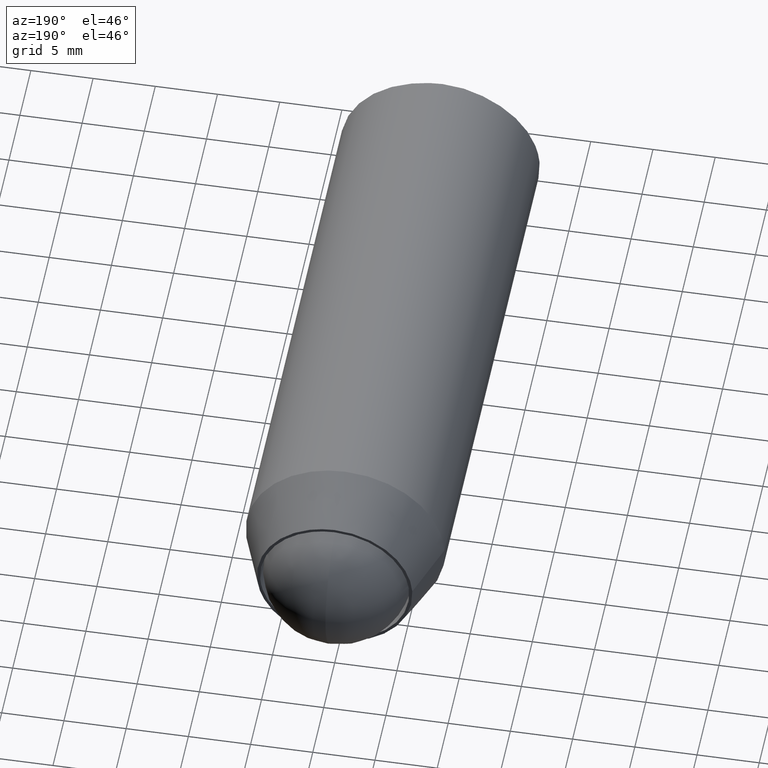
[diagram: clean part render]
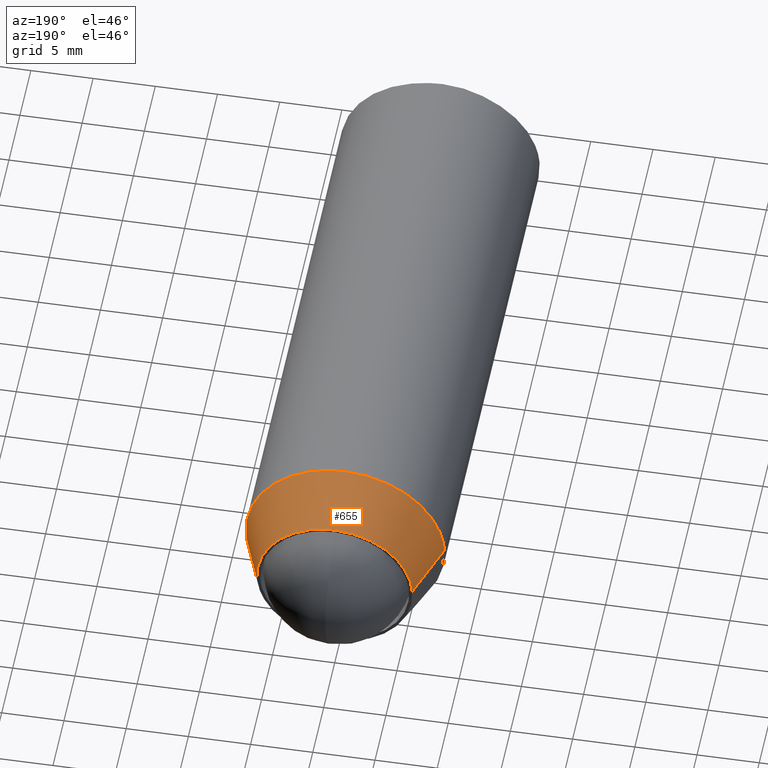
[diagram: same view with one face highlighted and labeled with its STEP entity id]
A machine part, auxiliary view. The second image highlights one B-rep face of the part: STEP entity #655.
In plain terms, the highlighted face is a freeform B-spline surface patch.
Its self-contained STEP definition (entity closure, byte-faithful):
#295=CARTESIAN_POINT('',(7.944076210907147,-4.808086000008145,-0.944273877297554));
#296=VERTEX_POINT('',#295);
#310=CARTESIAN_POINT('',(0.0,-4.808085999999999,7.999999999999998));
#311=VERTEX_POINT('',#310);
#312=CARTESIAN_POINT('',(7.944076210907147,-4.808086000008145,-0.944273877297554));
#313=CARTESIAN_POINT('',(8.0,-4.808086000000000,-0.473792957258873));
#314=CARTESIAN_POINT('',(8.0,-4.808085999999999,-1.291960E-015));
#315=CARTESIAN_POINT('',(8.0,-4.808086000000000,7.999999999999999));
#316=CARTESIAN_POINT('',(0.0,-4.808085999999999,7.999999999999998));
#324=(BOUNDED_CURVE()B_SPLINE_CURVE(2,(#312,#313,#314,#315,#316),.UNSPECIFIED.,.F.,.U.)B_SPLINE_CURVE_WITH_KNOTS((3,2,3),(0.229562473513809,0.250000000000000,0.500000000000000),.UNSPECIFIED.)CURVE()GEOMETRIC_REPRESENTATION_ITEM()RATIONAL_B_SPLINE_CURVE((0.956026754184288,0.976055948331497,1.0,0.707106781186548,1.0))REPRESENTATION_ITEM(''));
#325=EDGE_CURVE('',#296,#311,#324,.T.);
#327=CARTESIAN_POINT('',(-7.985078387375163,-4.808086000010075,0.488388316320178));
#328=VERTEX_POINT('',#327);
#329=CARTESIAN_POINT('',(0.0,-4.808085999999999,7.999999999999998));
#330=CARTESIAN_POINT('',(-7.525648535141883,-4.808085999999999,7.999999999999999));
#331=CARTESIAN_POINT('',(-7.985078387375163,-4.808086000010075,0.488388316320178));
#339=(BOUNDED_CURVE()B_SPLINE_CURVE(2,(#329,#330,#331),.UNSPECIFIED.,.F.,.U.)B_SPLINE_CURVE_WITH_KNOTS((3,3),(0.500000000000000,0.739332962239596),.UNSPECIFIED.)CURVE()GEOMETRIC_REPRESENTATION_ITEM()RATIONAL_B_SPLINE_CURVE((1.0,0.719603993285945,0.976072041668117))REPRESENTATION_ITEM(''));
#340=EDGE_CURVE('',#311,#328,#339,.T.);
#585=CARTESIAN_POINT('',(6.162865372994504,0.120202150000000,-0.732549968838508));
#586=CARTESIAN_POINT('',(6.183830638377908,0.120202150000000,-0.556171409609450));
#587=CARTESIAN_POINT('',(6.194674092705709,0.120202150000000,-0.378882498488207));
#588=CARTESIAN_POINT('',(6.573556591193915,0.120202150000000,5.815791594217502));
#589=CARTESIAN_POINT('',(0.378882498488206,0.120202150000000,6.194674092705708));
#590=CARTESIAN_POINT('',(-5.815791594217503,0.120202150000000,6.573556591193914));
#591=CARTESIAN_POINT('',(-6.194674092705709,0.120202150000000,0.378882498488205));
#592=CARTESIAN_POINT('',(7.988606481857201,-4.931293203750001,-0.949566974964458));
#593=CARTESIAN_POINT('',(8.015782680719118,-4.931293203750000,-0.720936489591182));
#594=CARTESIAN_POINT('',(8.029838494741664,-4.931293203750000,-0.491125961723623));
#595=CARTESIAN_POINT('',(8.520964456465288,-4.931293203750001,7.538712533018041));
#596=CARTESIAN_POINT('',(0.491125961723622,-4.931293203750000,8.029838494741663));
#597=CARTESIAN_POINT('',(-7.538712533018043,-4.931293203750001,8.520964456465284));
#598=CARTESIAN_POINT('',(-8.029838494741664,-4.931293203750000,0.491125961723621));
#606=(BOUNDED_SURFACE()B_SPLINE_SURFACE(2,1,((#585,#592),(#586,#593),(#587,#594),(#588,#595),(#589,#596),(#590,#597),(#591,#598)),.UNSPECIFIED.,.F.,.F.,.U.)B_SPLINE_SURFACE_WITH_KNOTS((3,2,2,3),(2,2),(0.0,0.533165342147589,13.862298895837300,27.191432449527010),(0.0,5.375689005745860),.UNSPECIFIED.)GEOMETRIC_REPRESENTATION_ITEM()RATIONAL_B_SPLINE_SURFACE(((0.977505800795127,0.977505800795127),(0.988284271247462,0.988284271247462),(1.0,1.0),(0.707106781186548,0.707106781186548),(1.0,1.0),(0.707106781186548,0.707106781186548),(1.0,1.0)))REPRESENTATION_ITEM('')SURFACE());
#607=CARTESIAN_POINT('',(6.206309539770752,-8.047153E-012,-0.737713966647744));
#608=VERTEX_POINT('',#607);
#609=CARTESIAN_POINT('',(0.0,0.0,6.249999999999999));
#610=VERTEX_POINT('',#609);
#611=CARTESIAN_POINT('',(6.206309539770752,-8.047153E-012,-0.737713966647744));
#612=CARTESIAN_POINT('',(6.250000000000001,0.0,-0.370150747867547));
#613=CARTESIAN_POINT('',(6.250000000000000,0.0,-1.291960E-015));
#614=CARTESIAN_POINT('',(6.249999999999999,0.0,6.249999999999999));
#615=CARTESIAN_POINT('',(0.0,0.0,6.249999999999999));
#623=(BOUNDED_CURVE()B_SPLINE_CURVE(2,(#611,#612,#613,#614,#615),.UNSPECIFIED.,.F.,.U.)B_SPLINE_CURVE_WITH_KNOTS((3,2,3),(0.229562473513321,0.250000000000000,0.500000000000000),.UNSPECIFIED.)CURVE()GEOMETRIC_REPRESENTATION_ITEM()RATIONAL_B_SPLINE_CURVE((0.956026754183332,0.976055948330926,1.0,0.707106781186547,1.0))REPRESENTATION_ITEM(''));
#624=EDGE_CURVE('',#608,#610,#623,.T.);
#625=ORIENTED_EDGE('',*,*,#624,.T.);
#626=CARTESIAN_POINT('',(-6.238340875282396,0.000005546944769,0.381546703838215));
#627=VERTEX_POINT('',#626);
#628=CARTESIAN_POINT('',(0.0,0.0,6.249999999999999));
#629=CARTESIAN_POINT('',(-5.879418090540685,0.000002773472384,6.249999938374815));
#630=CARTESIAN_POINT('',(-6.238340875282396,0.000005546944769,0.381546703838215));
#638=(BOUNDED_CURVE()B_SPLINE_CURVE(2,(#628,#629,#630),.UNSPECIFIED.,.F.,.U.)B_SPLINE_CURVE_WITH_KNOTS((3,3),(0.500000000000000,0.739333143270770),.UNSPECIFIED.)CURVE()GEOMETRIC_REPRESENTATION_ITEM()RATIONAL_B_SPLINE_CURVE((1.0,0.719603781194732,0.976072429652691))REPRESENTATION_ITEM(''));
#639=EDGE_CURVE('',#610,#627,#638,.T.);
#640=ORIENTED_EDGE('',*,*,#639,.T.);
#641=CARTESIAN_POINT('',(-6.238340875282396,0.000005546944769,0.381546703838215));
#642=CARTESIAN_POINT('',(-7.985078387375163,-4.808086000010075,0.488388316320178));
#643=QUASI_UNIFORM_CURVE('',1,(#641,#642),.UNSPECIFIED.,.F.,.U.);
#644=EDGE_CURVE('',#627,#328,#643,.T.);
#645=ORIENTED_EDGE('',*,*,#644,.T.);
#646=ORIENTED_EDGE('',*,*,#340,.F.);
#647=ORIENTED_EDGE('',*,*,#325,.F.);
#648=CARTESIAN_POINT('',(6.206309539770752,-8.047153E-012,-0.737713966647744));
#649=CARTESIAN_POINT('',(7.944076210907147,-4.808086000008145,-0.944273877297554));
#650=QUASI_UNIFORM_CURVE('',1,(#648,#649),.UNSPECIFIED.,.F.,.U.);
#651=EDGE_CURVE('',#608,#296,#650,.T.);
#652=ORIENTED_EDGE('',*,*,#651,.F.);
#653=EDGE_LOOP('',(#625,#640,#645,#646,#647,#652));
#654=FACE_OUTER_BOUND('',#653,.T.);
#655=ADVANCED_FACE('',(#654),#606,.T.);